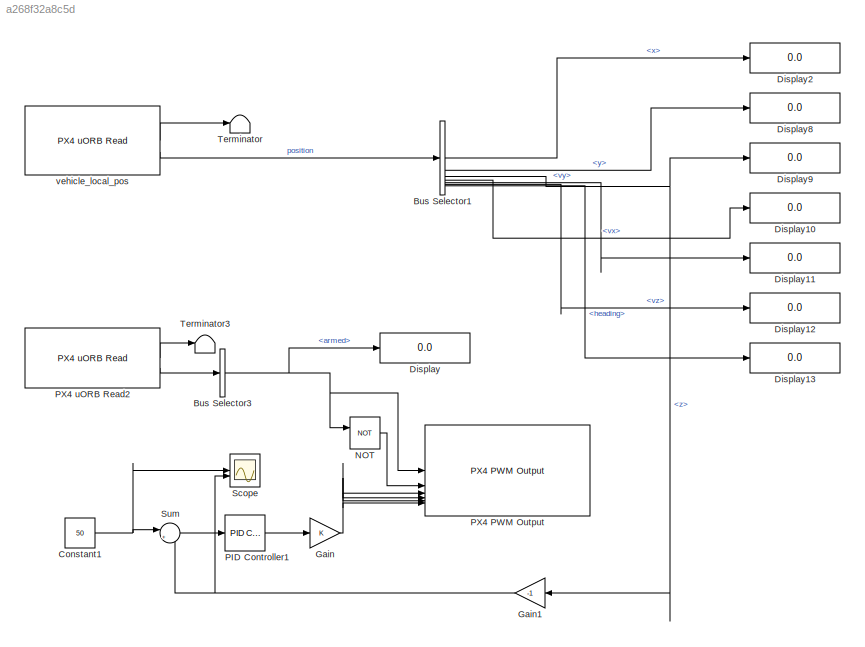
MODEL slx_a268f32a8c5d
KIND model
CONFIG AbsTol = auto
CONFIG EnableMultiTasking = on
CONFIG FixedStep = auto
CONFIG MaxStep = auto
CONFIG MinStep = auto
CONFIG RelTol = 1e-3
CONFIG SampleTimeConstraint = Unconstrained
CONFIG SolverName = FixedStepAuto
CONFIG StartTime = 0.0
CONFIG StopTime = inf
BLOCK [BusSelector] Bus Selector1
  OutputSignals = x,y,z,vx,vy,vz,heading
BLOCK [BusSelector] Bus Selector3
  OutputSignals = armed
BLOCK [Constant] Constant1
  Value = 50
BLOCK [Display] Display
  Decimation = 1
BLOCK [Display] Display10
  Decimation = 1
BLOCK [Display] Display11
  Decimation = 1
BLOCK [Display] Display12
  Decimation = 1
BLOCK [Display] Display13
  Decimation = 1
BLOCK [Display] Display2
  Decimation = 1
BLOCK [Display] Display8
  Decimation = 1
BLOCK [Display] Display9
  Decimation = 1
BLOCK [Gain] Gain
  OutDataTypeStr = uint16
BLOCK [Gain] Gain1
  Gain = -1
  NameLocation = top
BLOCK [Logic] NOT
  AllPortsSameDT = off
  IconShape = distinctive
  Operator = NOT
  OutDataTypeStr = boolean
BLOCK [Reference] PID Controller1  REF=slpidlib/PID Controller
  LibrarySourceBlock = simulink/Continuous/PID Controller
  SourceBlock = slpidlib/PID Controller
  SourceType = PID 1dof
BLOCK [Reference] PX4 PWM Output  REF=px4lib/PX4 PWM Output
  SourceBlock = px4lib/PX4 PWM Output
  SourceType = PX4 PWM Output
BLOCK [Reference] PX4 uORB Read2  REF=px4uORBlib/PX4 uORB Read
  SourceBlock = px4uORBlib/PX4 uORB Read
  SourceType = PX4 uORB Read
BLOCK [Scope] Scope
  Floating = off
  NumInputPorts = 2
  ScopeSpecificationString = Simulink.scopes.TimeScopeBlockCfg('CurrentConfiguration', extmgr.ConfigurationSet(extmgr.Configuration('Core','General UI',true),extmgr.Configuration('Core','Source UI',true),extmgr.Configuration('Sources','WiredSimulink',true,'DataLoggingSaveFormat','Array','DataLoggingLimitDataPoints',true,'DataLoggingDecimation','1'),extmgr.Configuration('Visuals','Time Domain',true,'SerializedDisplays',{struct...<+1688ch>
BLOCK [Sum] Sum
  Inputs = |+-
BLOCK [Terminator] Terminator
BLOCK [Terminator] Terminator3
BLOCK [Reference] vehicle_local_pos  REF=px4uORBlib/PX4 uORB Read
  SourceBlock = px4uORBlib/PX4 uORB Read
  SourceType = PX4 uORB Read
LINE Bus Selector1:1 -> Display2:1
LINE Bus Selector1:2 -> Display8:1
NET Bus Selector1:3 -> Display9:1, Gain1:1
LINE Bus Selector1:4 -> Display10:1
LINE Bus Selector1:5 -> Display11:1
LINE Bus Selector1:6 -> Display12:1
LINE Bus Selector1:7 -> Display13:1
NET Bus Selector3:1 -> Display:1, NOT:1, PX4 PWM Output:1
NET Constant1:1 -> Scope:1, Sum:1
NET Gain1:1 -> Scope:2, Sum:2
NET Gain:1 -> PX4 PWM Output:3, PX4 PWM Output:4, PX4 PWM Output:5, PX4 PWM Output:6
LINE NOT:1 -> PX4 PWM Output:2
LINE PID Controller1:1 -> Gain:1
LINE PX4 uORB Read2:1 -> Terminator3:1
LINE PX4 uORB Read2:2 -> Bus Selector3:1
LINE Sum:1 -> PID Controller1:1
LINE vehicle_local_pos:1 -> Terminator:1
LINE vehicle_local_pos:2 -> Bus Selector1:1
note: NET lines group one-source signal fan-out (src -> all destinations, sorted); 1:1 wires keep LINE
